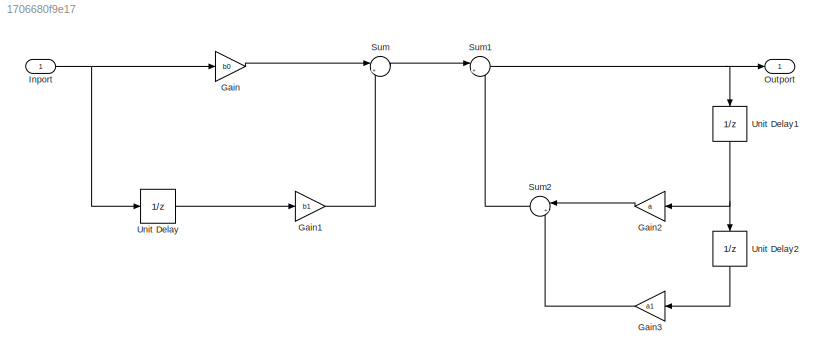
MODEL slx_1706680f9e17
KIND model
CONFIG AbsTol = auto
CONFIG EnableMultiTasking = off
CONFIG FixedStep = auto
CONFIG MaxStep = auto
CONFIG MinStep = auto
CONFIG RelTol = 1e-3
CONFIG SampleTimeConstraint = Unconstrained
CONFIG SolverName = VariableStepAuto
CONFIG StartTime = 0.0
CONFIG StopTime = 10.0
WORKSPACE source: mxarray member
WORKSPACE a = 0.5
WORKSPACE a1 = -0.25
WORKSPACE b0 = 1
WORKSPACE b1 = 0.4
BLOCK [Gain] Gain
  Gain = b0
BLOCK [Gain] Gain1
  Gain = b1
BLOCK [Gain] Gain2
  Gain = a
BLOCK [Gain] Gain3
  Gain = a1
BLOCK [Inport] Inport
BLOCK [Outport] Outport
BLOCK [Sum] Sum
  Inputs = |++
  Ports = [2, 1]
BLOCK [Sum] Sum1
  Inputs = |++
  Ports = [2, 1]
BLOCK [Sum] Sum2
  Inputs = |++
  NameLocation = top
  Ports = [2, 1]
BLOCK [UnitDelay] Unit Delay
  HasFrameUpgradeWarning = on
  SampleTime = -1
BLOCK [UnitDelay] Unit Delay1
  HasFrameUpgradeWarning = on
  NameLocation = left
  SampleTime = -1
BLOCK [UnitDelay] Unit Delay2
  HasFrameUpgradeWarning = on
  NameLocation = left
  SampleTime = -1
LINE Gain1:1 -> Sum:2
LINE Gain2:1 -> Sum2:1
LINE Gain3:1 -> Sum2:2
LINE Gain:1 -> Sum:1
NET Inport:1 -> Gain:1, Unit Delay:1
NET Sum1:1 -> Outport:1, Unit Delay1:1
LINE Sum2:1 -> Sum1:2
LINE Sum:1 -> Sum1:1
NET Unit Delay1:1 -> Gain2:1, Unit Delay2:1
LINE Unit Delay2:1 -> Gain3:1
LINE Unit Delay:1 -> Gain1:1
note: NET lines group one-source signal fan-out (src -> all destinations, sorted); 1:1 wires keep LINE
